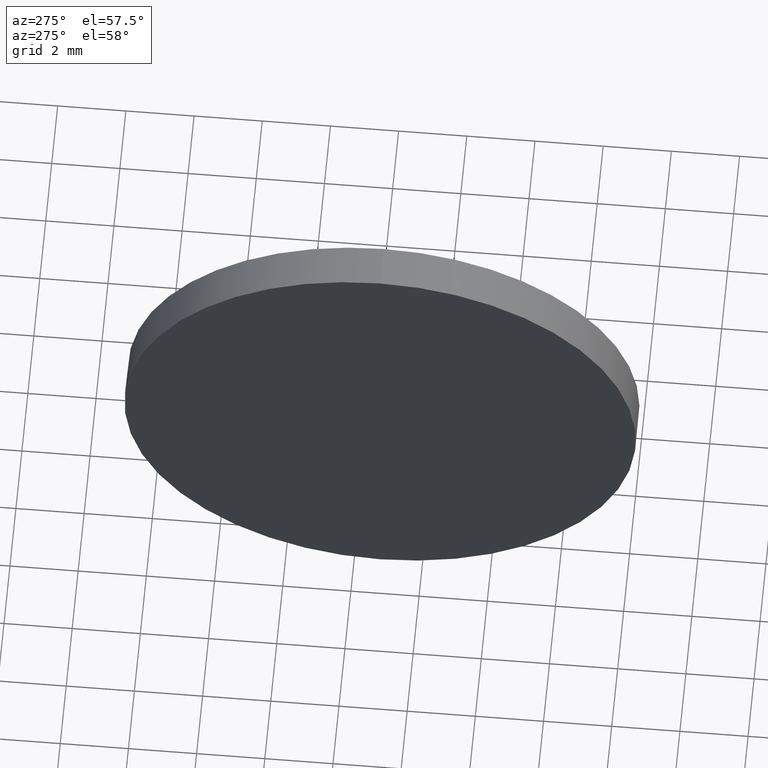
[diagram: clean part render]
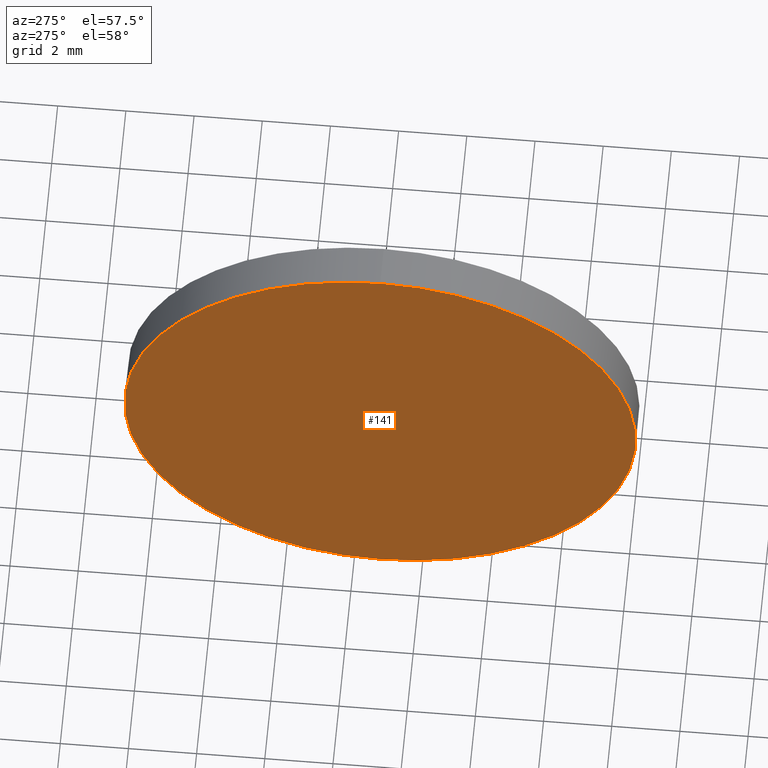
[diagram: same view with one face highlighted and labeled with its STEP entity id]
A machine part, auxiliary view. The second image highlights one B-rep face of the part: STEP entity #141.
In plain terms, the highlighted planar face has unit normal (1, 0, 0).
Its self-contained STEP definition (entity closure, byte-faithful):
#5 = ORIENTED_EDGE ( 'NONE', *, *, #33, .T. ) ;
#7 = DIRECTION ( 'NONE',  ( -1.000000000000000000, -0.0000000000000000000, -0.0000000000000000000 ) ) ;
#16 = EDGE_LOOP ( 'NONE', ( #151, #5 ) ) ;
#20 = EDGE_CURVE ( 'NONE', #165, #117, #122, .T. ) ;
#24 = DIRECTION ( 'NONE',  ( 1.000000000000000000, 0.0000000000000000000, 0.0000000000000000000 ) ) ;
#33 = EDGE_CURVE ( 'NONE', #117, #165, #84, .T. ) ;
#48 = AXIS2_PLACEMENT_3D ( 'NONE', #179, #7, #65 ) ;
#55 = DIRECTION ( 'NONE',  ( -1.000000000000000000, -0.0000000000000000000, -0.0000000000000000000 ) ) ;
#57 = AXIS2_PLACEMENT_3D ( 'NONE', #185, #55, #173 ) ;
#61 = AXIS2_PLACEMENT_3D ( 'NONE', #118, #24, #129 ) ;
#65 = DIRECTION ( 'NONE',  ( 0.0000000000000000000, 0.0000000000000000000, 1.000000000000000000 ) ) ;
#84 = CIRCLE ( 'NONE', #57, 7.500000000000007100 ) ;
#117 = VERTEX_POINT ( 'NONE', #182 ) ;
#118 = CARTESIAN_POINT ( 'NONE',  ( 364.9699605554130800, 381.2277991723684600, 0.0000000000000000000 ) ) ;
#122 = CIRCLE ( 'NONE', #48, 7.500000000000007100 ) ;
#129 = DIRECTION ( 'NONE',  ( 0.0000000000000000000, 0.0000000000000000000, -1.000000000000000000 ) ) ;
#141 = ADVANCED_FACE ( 'NONE', ( #181 ), #183, .F. ) ;
#151 = ORIENTED_EDGE ( 'NONE', *, *, #20, .T. ) ;
#157 = CARTESIAN_POINT ( 'NONE',  ( 364.9699605554130800, 381.2277991723684600, 7.500000000000007100 ) ) ;
#165 = VERTEX_POINT ( 'NONE', #157 ) ;
#173 = DIRECTION ( 'NONE',  ( 0.0000000000000000000, 0.0000000000000000000, 1.000000000000000000 ) ) ;
#179 = CARTESIAN_POINT ( 'NONE',  ( 364.9699605554130800, 381.2277991723684600, 0.0000000000000000000 ) ) ;
#181 = FACE_OUTER_BOUND ( 'NONE', #16, .T. ) ;
#182 = CARTESIAN_POINT ( 'NONE',  ( 364.9699605554130800, 381.2277991723684600, -7.500000000000007100 ) ) ;
#183 = PLANE ( 'NONE',  #61 ) ;
#185 = CARTESIAN_POINT ( 'NONE',  ( 364.9699605554130800, 381.2277991723684600, 0.0000000000000000000 ) ) ;